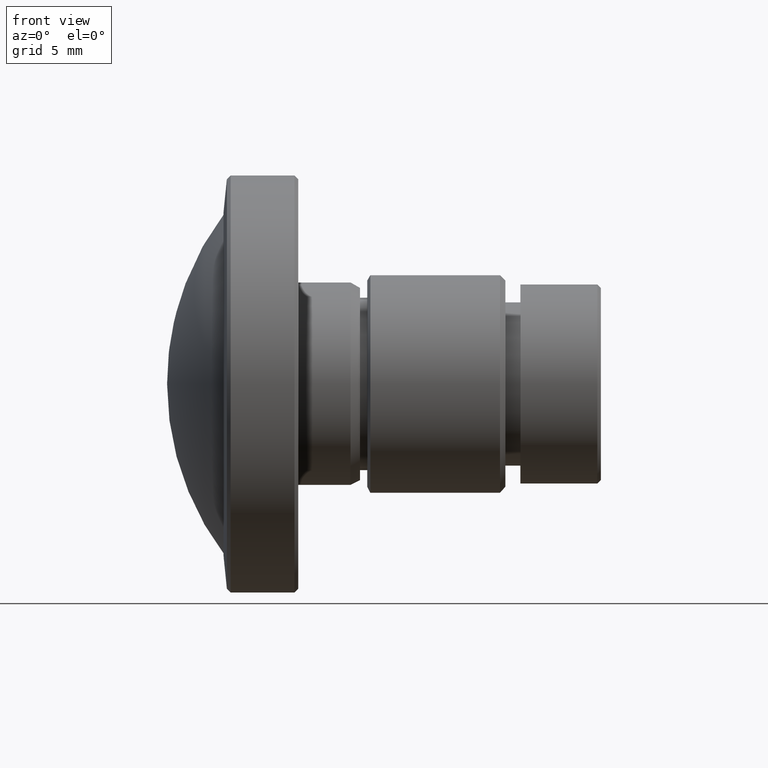
[diagram: clean part render]
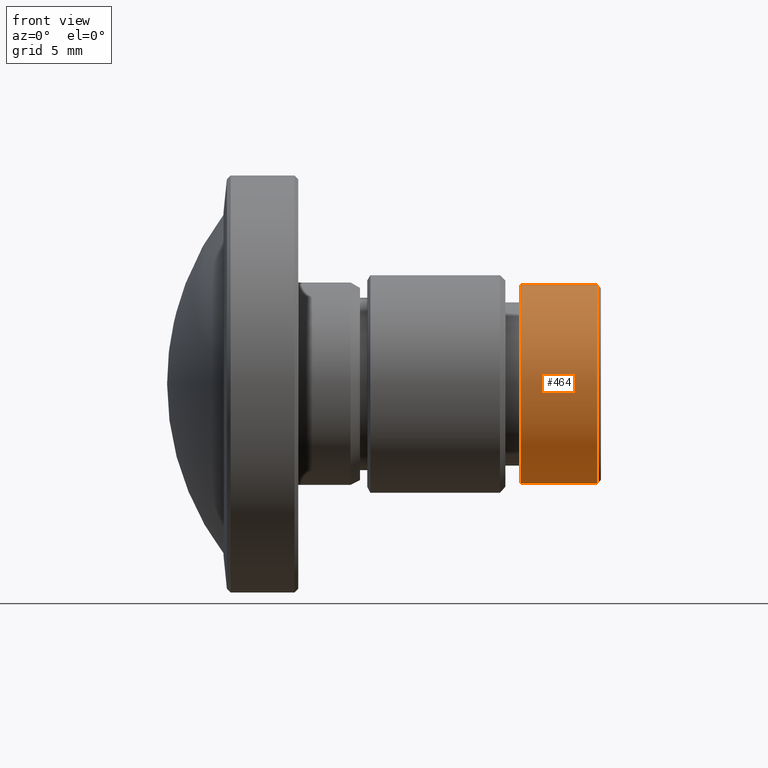
[diagram: same view with one face highlighted and labeled with its STEP entity id]
A machine part, front view. The second image highlights one B-rep face of the part: STEP entity #464.
In plain terms, the highlighted cylindrical surface (bore or boss wall) has radius 5.4869 mm, axis along (-1, 0, 0).
Its self-contained STEP definition (entity closure, byte-faithful):
#54=ORIENTED_EDGE('',*,*,#97,.F.);
#55=ORIENTED_EDGE('',*,*,#96,.T.);
#96=EDGE_CURVE('',#121,#121,#146,.T.);
#97=EDGE_CURVE('',#122,#122,#147,.T.);
#121=VERTEX_POINT('',#668);
#122=VERTEX_POINT('',#671);
#146=CIRCLE('',#503,5.48691575012368);
#147=CIRCLE('',#505,5.48691575012368);
#179=EDGE_LOOP('',(#54));
#180=EDGE_LOOP('',(#55));
#229=FACE_BOUND('',#179,.T.);
#230=FACE_BOUND('',#180,.T.);
#265=CYLINDRICAL_SURFACE('',#504,5.48691575012368);
#464=ADVANCED_FACE('',(#229,#230),#265,.T.);
#503=AXIS2_PLACEMENT_3D('',#667,#573,#574);
#504=AXIS2_PLACEMENT_3D('',#669,#575,#576);
#505=AXIS2_PLACEMENT_3D('',#670,#577,#578);
#573=DIRECTION('',(-1.,0.,0.));
#574=DIRECTION('',(0.,0.,1.));
#575=DIRECTION('',(-1.,0.,0.));
#576=DIRECTION('',(0.,0.,1.));
#577=DIRECTION('',(-1.,0.,0.));
#578=DIRECTION('',(0.,0.,1.));
#667=CARTESIAN_POINT('',(-3.03089600495413,0.,0.));
#668=CARTESIAN_POINT('',(-3.03089600495413,0.,5.48691575012368));
#669=CARTESIAN_POINT('',(-60.,0.,0.));
#670=CARTESIAN_POINT('',(-7.27445850495415,0.,0.));
#671=CARTESIAN_POINT('',(-7.27445850495415,0.,5.48691575012368));